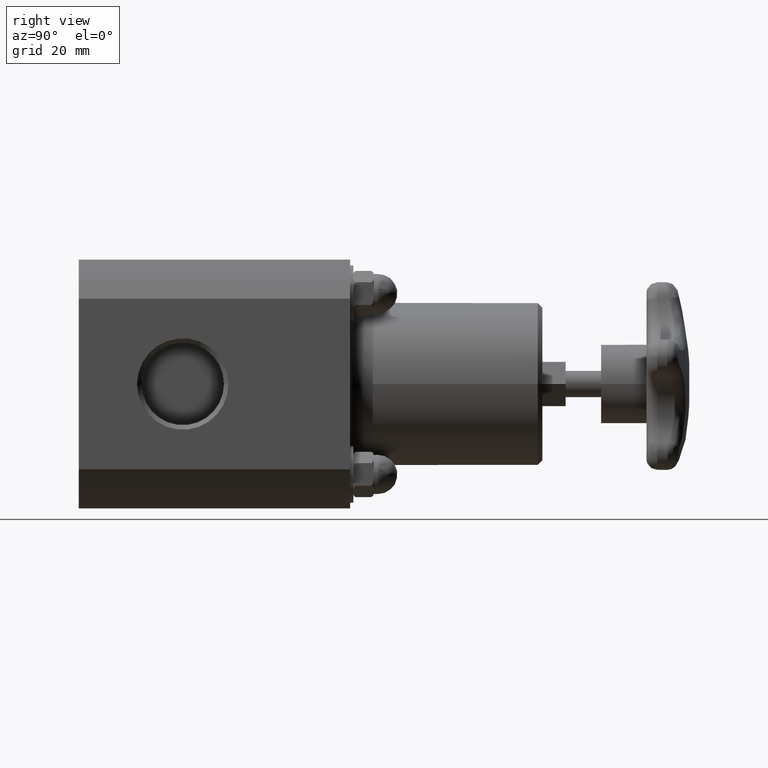
[diagram: clean part render]
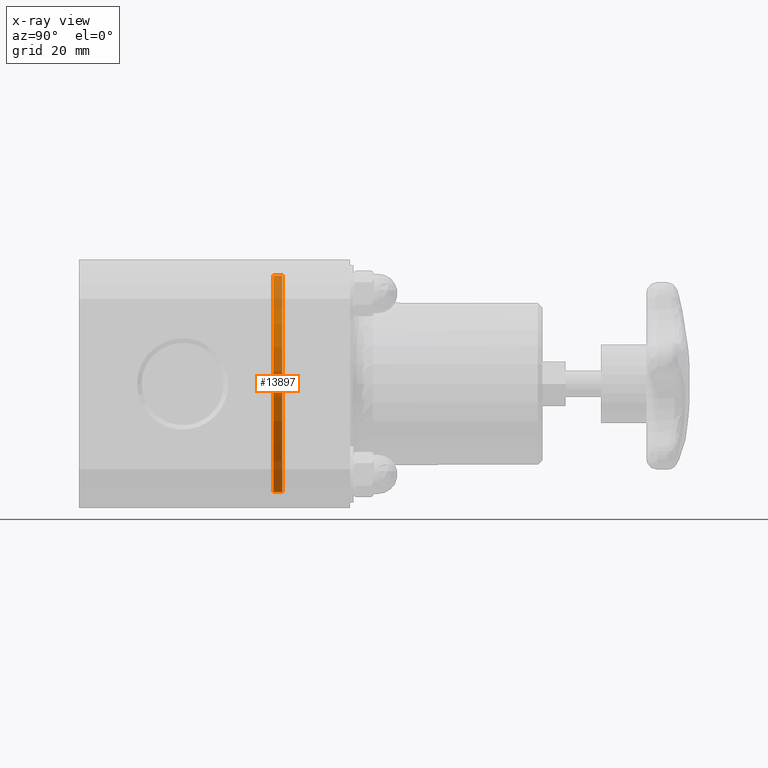
[diagram: x-ray — body ghosted, one internal face saturated and labeled with its STEP entity id]
A machine part, right view, then the same camera in x-ray: the body is ghosted and one INTERNAL B-rep face — a face not visible from any outside direction — is saturated and labeled: STEP entity #13897.
In plain terms, the highlighted cylindrical surface (bore or boss wall) has radius 30.48 mm, axis along (-0, 1, 0).
Its self-contained STEP definition (entity closure, byte-faithful):
#13870=CARTESIAN_POINT('',(-1.099121E-015,2.200000000000000,6.308368E-016));
#13871=DIRECTION('',(-4.996004E-016,1.0,2.867440E-016));
#13872=DIRECTION('',(-1.0,0.0,0.0));
#13873=AXIS2_PLACEMENT_3D('',#13870,#13871,#13872);
#13874=CYLINDRICAL_SURFACE('',#13873,1.200000000000000);
#13875=CARTESIAN_POINT('',(-1.200000000000001,2.250000000000000,5.486538E-016));
#13876=VERTEX_POINT('',#13875);
#13877=CARTESIAN_POINT('',(-1.124101E-015,2.250000000000000,6.451740E-016));
#13878=DIRECTION('',(0.0,-1.0,0.0));
#13879=DIRECTION('',(-1.0,0.0,0.0));
#13880=AXIS2_PLACEMENT_3D('',#13877,#13878,#13879);
#13881=CIRCLE('',#13880,1.200000000000000);
#13882=EDGE_CURVE('',#13876,#13876,#13881,.T.);
#13883=ORIENTED_EDGE('',*,*,#13882,.F.);
#13884=EDGE_LOOP('',(#13883));
#13885=FACE_OUTER_BOUND('',#13884,.T.);
#13886=CARTESIAN_POINT('',(-1.200000000000001,2.150000000000000,5.199794E-016));
#13887=VERTEX_POINT('',#13886);
#13888=CARTESIAN_POINT('',(-1.074141E-015,2.150000000000000,6.164996E-016));
#13889=DIRECTION('',(0.0,1.0,0.0));
#13890=DIRECTION('',(-1.0,0.0,0.0));
#13891=AXIS2_PLACEMENT_3D('',#13888,#13889,#13890);
#13892=CIRCLE('',#13891,1.200000000000000);
#13893=EDGE_CURVE('',#13887,#13887,#13892,.T.);
#13894=ORIENTED_EDGE('',*,*,#13893,.F.);
#13895=EDGE_LOOP('',(#13894));
#13896=FACE_BOUND('',#13895,.T.);
#13897=ADVANCED_FACE('',(#13885,#13896),#13874,.F.);